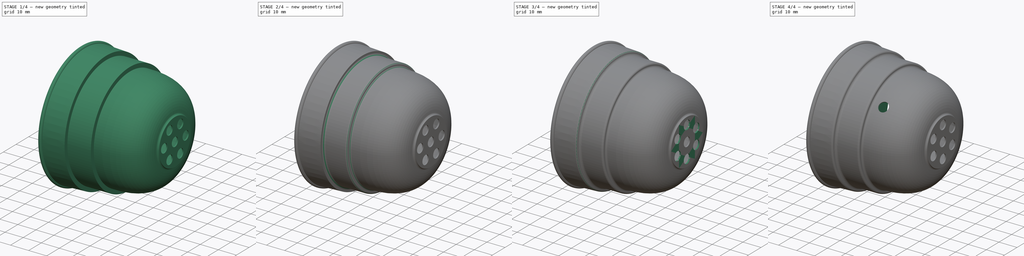
[diagram: build sequence overview — one tinted view per stage of 4, left to right]
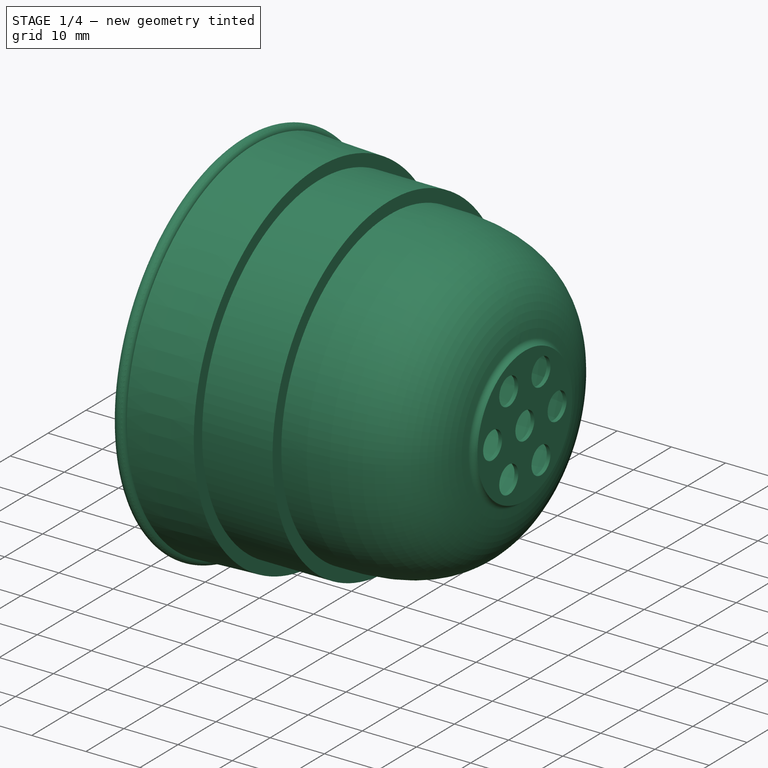
[diagram: stage 1 of 4 — iso view after this stage's code; geometry added in this stage tinted green]
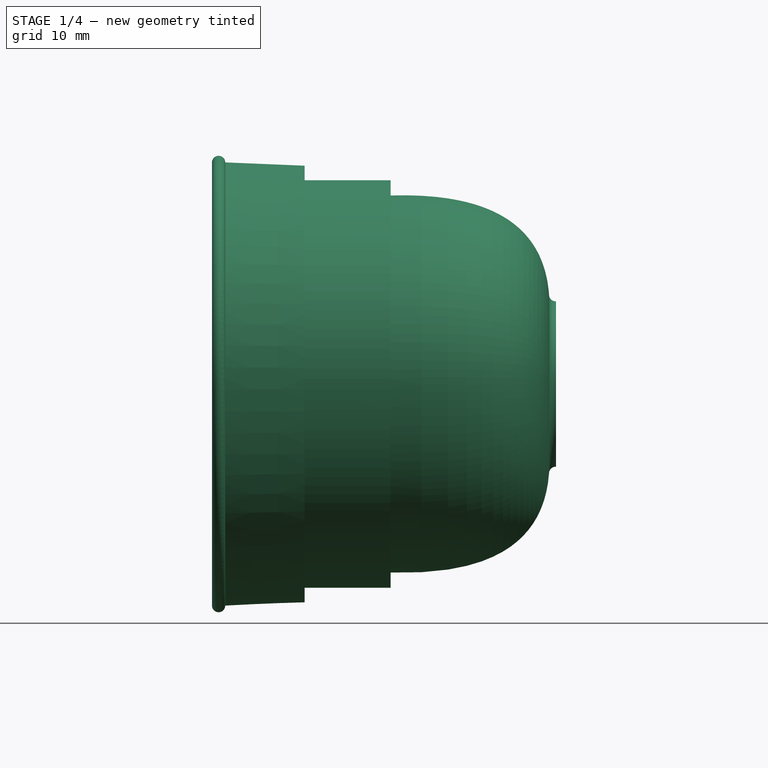
[diagram: stage 1 of 4 — front view after this stage's code; geometry added in this stage tinted green]
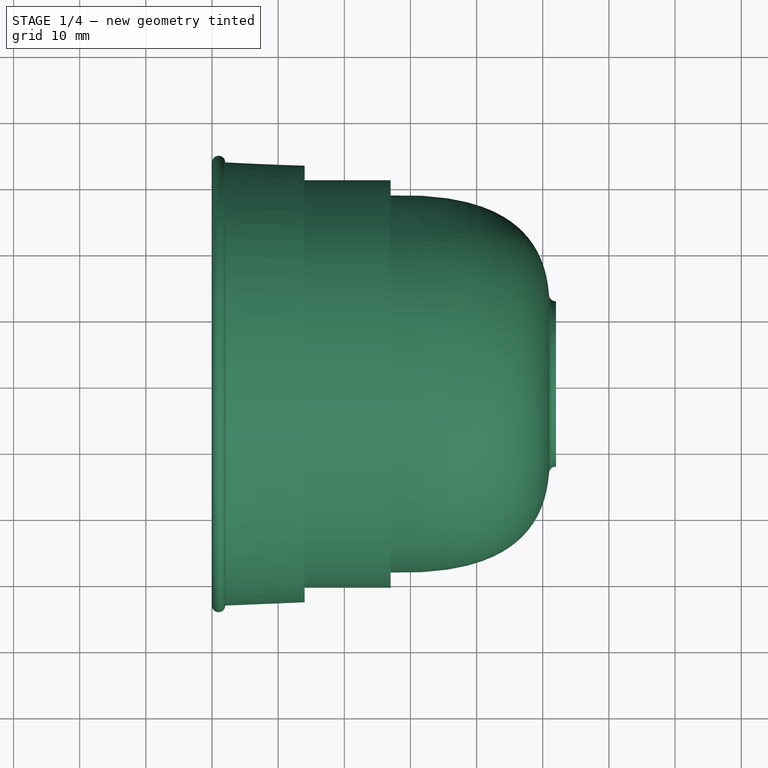
[diagram: stage 1 of 4 — top view after this stage's code; geometry added in this stage tinted green]
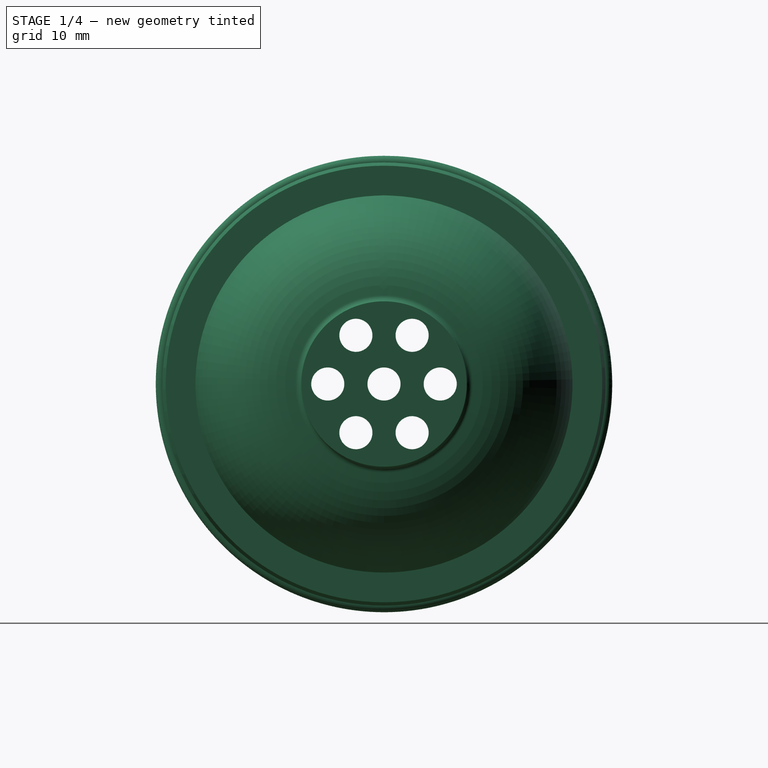
[diagram: stage 1 of 4 — right view after this stage's code; geometry added in this stage tinted green]
FCSTD DOCUMENT  (FreeCAD 0.19R19566 (Git))
Label: Cap
License: All rights reserved
LicenseURL: http://en.wikipedia.org/wiki/All_rights_reserved
objects: Part::Feature×34, App::Part×28, PartDesign::Fillet×6, Sketcher::SketchObject×4, PartDesign::Body×2, PartDesign::SubtractiveCylinder×2, PartDesign::Revolution×1, PartDesign::Plane×1, PartDesign::Pad×1, PartDesign::Hole×1, PartDesign::Pocket×1, PartDesign::Line×1
note: 60 computed .brp shape members not serialized (recipe doc carries the construction recipe); baked Part::Feature solids carry a one-line shape summary decoded from their .brp

FEATURE [Sketcher::SketchObject] Sketch
  MapMode = 5
  Placement = pos=(0,0,0) rot=(1,0,0;1.5708rad)
  Support = -> [XZ_Plane]
  sketch-geometry (33):
    g0: LineSegment StartX=2 StartY=33.5 StartZ=0 EndX=14 EndY=33 EndZ=0
    g1: LineSegment StartX=14 StartY=33 StartZ=0 EndX=14 EndY=30.8 EndZ=0
    g2: LineSegment StartX=14 StartY=30.8 StartZ=0 EndX=27 EndY=30.8 EndZ=0
    g3: LineSegment StartX=27 StartY=30.8 StartZ=0 EndX=27 EndY=28.5 EndZ=0
    g4: ArcOfCircle CenterX=1 CenterY=33.5 CenterZ=0 NormalX=0 NormalY=0 NormalZ=1 AngleXU=0 Radius=1 StartAngle=2.1e-15 EndAngle=3.14159
    g5: LineSegment [constr] StartX=2 StartY=33.5 StartZ=0 EndX=0 EndY=33.5 EndZ=0
    g6: LineSegment StartX=52 StartY=0 StartZ=0 EndX=52 EndY=12.5 EndZ=0
    g7: LineSegment StartX=52 StartY=12.5 StartZ=0 EndX=51 EndY=12.5 EndZ=0
    g8: Circle [constr] CenterX=27 CenterY=28.5 CenterZ=0 NormalX=0 NormalY=0 NormalZ=1 AngleXU=0 Radius=2
    g9: Circle [constr] CenterX=50.5 CenterY=29.2 CenterZ=0 NormalX=0 NormalY=0 NormalZ=1 AngleXU=0 Radius=2
    g10: Circle [constr] CenterX=51 CenterY=12.5 CenterZ=0 NormalX=0 NormalY=0 NormalZ=1 AngleXU=0 Radius=2
    g11: BSplineCurve PolesCount=3 KnotsCount=2 Degree=2 IsPeriodic=0
    g12: GeomPoint [constr] X=27 Y=28.5 Z=0
    g13: GeomPoint [constr] X=51 Y=12.5 Z=0
    g14: LineSegment StartX=0 StartY=33.5 StartZ=0 EndX=0 EndY=32.8 EndZ=0
    g15: LineSegment StartX=0 StartY=32.8 StartZ=0 EndX=13.3 EndY=32.3286 EndZ=0
    g16: LineSegment StartX=13.3 StartY=32.3286 StartZ=0 EndX=13.3 EndY=30.1 EndZ=0
    g17: LineSegment StartX=13.3 StartY=30.1 StartZ=0 EndX=26.3 EndY=30.1 EndZ=0
    g18: LineSegment StartX=26.3 StartY=30.1 StartZ=0 EndX=26.3 EndY=27.8 EndZ=0
    g19: LineSegment StartX=26.3 StartY=27.8 StartZ=0 EndX=27 EndY=27.8 EndZ=0
    g20: Circle [constr] CenterX=27 CenterY=27.8 CenterZ=0 NormalX=0 NormalY=0 NormalZ=1 AngleXU=0 Radius=3
    g21: Circle [constr] CenterX=50.05 CenterY=28.6638 CenterZ=0 NormalX=0 NormalY=0 NormalZ=1 AngleXU=0 Radius=3
    g22: Circle [constr] CenterX=50.3 CenterY=12.5 CenterZ=0 NormalX=0 NormalY=0 NormalZ=1 AngleXU=0 Radius=3
    g23: BSplineCurve PolesCount=3 KnotsCount=2 Degree=2 IsPeriodic=0
    g24: GeomPoint [constr] X=27 Y=27.8 Z=0
    g25: GeomPoint [constr] X=50.3 Y=12.5 Z=0
    g26: LineSegment StartX=52 StartY=0 StartZ=0 EndX=51.3 EndY=0 EndZ=0
    g27: LineSegment StartX=51.3 StartY=0 StartZ=0 EndX=51.3 EndY=12 EndZ=0
    g28: LineSegment StartX=51.3 StartY=12 StartZ=0 EndX=50.3 EndY=12.5 EndZ=0
    g29: LineSegment [constr] StartX=50.05 StartY=28.6638 StartZ=0 EndX=50.5 EndY=29.2 EndZ=0
    g30: LineSegment [constr] StartX=27 StartY=28.5 StartZ=0 EndX=27 EndY=27.8 EndZ=0
    g31: LineSegment [constr] StartX=13.3 StartY=32.3286 StartZ=0 EndX=13.3291 EndY=33.028 EndZ=0
    g32: LineSegment [constr] StartX=50.3 StartY=12.5 StartZ=0 EndX=51 EndY=12.5 EndZ=0
  constraints (85):
    c: Coincident(g0,g1)
    c: Vertical(g1)
    c: Coincident(g1,g2)
    c: Horizontal(g2)
    c: Coincident(g2,g3)
    c: Coincident(g4,g0)
    c: Coincident(g5,g0)
    c: Horizontal(g5)
    c: Coincident(g4,g5)
    c: DistanceX(g5,g5) = 2
    c: DistanceY(g-1,g4) = 33.5
    c: PointOnObject(g4,g-2)
    c: Vertical(g3)
    c: DistanceX(g4,g0) = 14
    c: DistanceY(g-1,g1) = 30.8
    c: DistanceX(g4,g2) = 27
    c: DistanceY(g-1,g0) = 33
    c: DistanceY(g-1,g3) = 28.5
    c: PointOnObject(g4,g5)
    c: PointOnObject(g6,g-1)
    c: Vertical(g6)
    c: Coincident(g6,g7)
    c: Horizontal(g7)
    c: DistanceX(g-1,g6) = 52
    c: DistanceY(g6,g6) = 12.5
    c: DistanceX(g7,g7) = 1
    c: Radius(g8) = 2
    c: Equal(g8,g9)
    c: Equal(g8,g10)
    c: Coincident(g11,g7)
    c: InternalAlignment(g8,g11)
    c: InternalAlignment(g9,g11)
    c: InternalAlignment(g10,g11)
    c: InternalAlignment(g12,g11)
    c: InternalAlignment(g13,g11)
    c: Coincident(g11,g3)
    c: Tangent(g4,g14) = -1.5708
    c: Coincident(g14,g15)
    c: Coincident(g15,g16)
    c: Vertical(g16)
    c: Coincident(g16,g17)
    c: Horizontal(g17)
    c: Coincident(g17,g18)
    c: Vertical(g18)
    c: Coincident(g18,g19)
    c: Coincident(g23,g19)
    c: Radius(g20) = 3
    c: Equal(g20,g21)
    c: Equal(g20,g22)
    c: InternalAlignment(g20,g23)
    c: InternalAlignment(g21,g23)
    c: InternalAlignment(g22,g23)
    c: InternalAlignment(g24,g23)
    c: InternalAlignment(g25,g23)
    c: Coincident(g6,g26)
    c: DistanceX(g26,g26) = 0.7
    c: Horizontal(g26)
    c: Coincident(g27,g26)
    c: Vertical(g27)
    c: Coincident(g27,g28)
    c: Coincident(g28,g23)
    c: DistanceY(g27,g6) = 0.5
    c: Coincident(g29,g21)
    c: Coincident(g29,g9)
    c: Angle(g29,g-1) = 2.26893
    c: Distance(g29) = 0.7
    c: Coincident(g3,g30)
    c: Coincident(g30,g19)
    c: Vertical(g30)
    c: DistanceY(g30,g30) = 0.7
    c: DistanceY(g17,g2) = 0.7
    c: DistanceX(g19,g19) = 0.7
    c: Horizontal(g19)
    c: DistanceX(g15,g0) = 0.7
    c: DistanceY(g14,g14) = 0.7
    c: Coincident(g15,g31)
    c: PointOnObject(g31,g0)
    c: Distance(g31) = 0.7
    c: Perpendicular(g0,g31)
    c: DistanceX(g9,g6) = 1.5
    c: DistanceY(g3,g9) = 0.7
    c: Horizontal(g32)
    c: Coincident(g32,g23)
    c: Coincident(g32,g7)
    c: DistanceX(g32,g32) = 0.7
FEATURE [PartDesign::Revolution] Revolution
  Angle = 360
  Axis = (1,0,0)
  Base = (0,0,0)
  Placement = pos=(0,0,0) rot=(1,0,0;1.5708rad)
  Profile = -> Sketch
  ReferenceAxis = -> X_Axis
  Reversed = true
FEATURE [PartDesign::Body] Body001  label="Blech"
  Group = -> [DatumPlane,Sketch001,Pad,Sketch002,Hole]
  Origin = -> Origin001
  Placement = pos=(25,0,0) rot=(0,0,1;0rad)
  Tip = -> Hole
FEATURE [Sketcher::SketchObject] Sketch003
  MapMode = 5
  Placement = pos=(52,0,0) rot=(0.707107,0,0.707107;3.14159rad)
  Support = -> [Revolution]
  sketch-geometry (14):
    g0: LineSegment [constr] StartX=7.36122 StartY=-4.25 StartZ=0 EndX=7.36122 EndY=4.25 EndZ=0
    g1: LineSegment [constr] StartX=7.36122 StartY=4.25 StartZ=0 EndX=0 EndY=8.5 EndZ=0
    g2: LineSegment [constr] StartX=0 StartY=8.5 StartZ=0 EndX=-7.36122 EndY=4.25 EndZ=0
    g3: LineSegment [constr] StartX=-7.36122 StartY=4.25 StartZ=0 EndX=-7.36122 EndY=-4.25 EndZ=0
    g4: LineSegment [constr] StartX=-7.36122 StartY=-4.25 StartZ=0 EndX=1.8e-15 EndY=-8.5 EndZ=0
    g5: LineSegment [constr] StartX=1.8e-15 StartY=-8.5 StartZ=0 EndX=7.36122 EndY=-4.25 EndZ=0
    g6: Circle [constr] CenterX=0 CenterY=0 CenterZ=0 NormalX=0 NormalY=0 NormalZ=1 AngleXU=0 Radius=8.5
    g7: Circle CenterX=7.36122 CenterY=4.25 CenterZ=0 NormalX=0 NormalY=0 NormalZ=1 AngleXU=0 Radius=2.5
    g8: Circle CenterX=7.36122 CenterY=-4.25 CenterZ=0 NormalX=0 NormalY=0 NormalZ=1 AngleXU=0 Radius=2.5
    g9: Circle CenterX=1.8e-15 CenterY=-8.5 CenterZ=0 NormalX=0 NormalY=0 NormalZ=1 AngleXU=0 Radius=2.5
    g10: Circle CenterX=-7.36122 CenterY=-4.25 CenterZ=0 NormalX=0 NormalY=0 NormalZ=1 AngleXU=0 Radius=2.5
    g11: Circle CenterX=-7.36122 CenterY=4.25 CenterZ=0 NormalX=0 NormalY=0 NormalZ=1 AngleXU=0 Radius=2.5
    g12: Circle CenterX=0 CenterY=8.5 CenterZ=0 NormalX=0 NormalY=0 NormalZ=1 AngleXU=0 Radius=2.5
    g13: Circle CenterX=0 CenterY=0 CenterZ=0 NormalX=0 NormalY=0 NormalZ=1 AngleXU=0 Radius=2.5
  constraints (30):
    c: Coincident(g0,g1)
    c: Coincident(g1,g2)
    c: Coincident(g2,g3)
    c: Coincident(g3,g4)
    c: Coincident(g4,g5)
    c: Coincident(g5,g0)
    c: Equal(g0, g1-g5) x5
    c: PointOnObject(g0,g6)
    c: PointOnObject(g1,g6)
    c: PointOnObject(g2,g6)
    c: PointOnObject(g3,g6)
    c: PointOnObject(g4,g6)
    c: PointOnObject(g5,g6)
    c: Coincident(g6,g-1)
    c: Distance(g2,g0) = 17
    c: PointOnObject(g1,g-2)
    c: Coincident(g7,g0)
    c: Coincident(g8,g0)
    c: Coincident(g9,g4)
    c: Coincident(g10,g3)
    c: Coincident(g11,g2)
    c: Coincident(g12,g1)
    c: Coincident(g13,g-1)
    c: Equal(g7,g8)
    c: Equal(g8,g9)
    c: Equal(g9,g13)
    c: Equal(g13,g12)
    c: Equal(g12,g11)
    c: Equal(g11,g10)
    c: Diameter(g7) = 5
FEATURE [PartDesign::Pocket] Pocket
  BaseFeature = -> Revolution
  Length = 5
  Length2 = 100
  Placement = pos=(0,0,0) rot=(1,0,0;1.5708rad)
  Profile = -> Sketch003
  Type = 0
FEATURE [PartDesign::Fillet] Fillet
  Base = -> Pocket [Edge16]
  BaseFeature = -> Pocket
  Placement = pos=(0,0,0) rot=(1,0,0;1.5708rad)
  Radius = 1
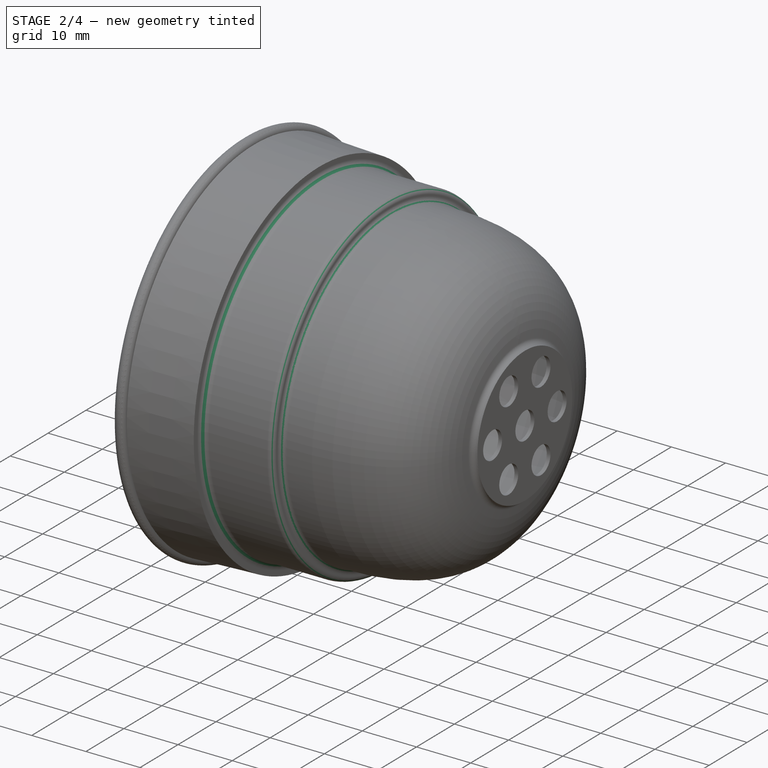
[diagram: stage 2 of 4 — iso view after this stage's code; geometry added in this stage tinted green]
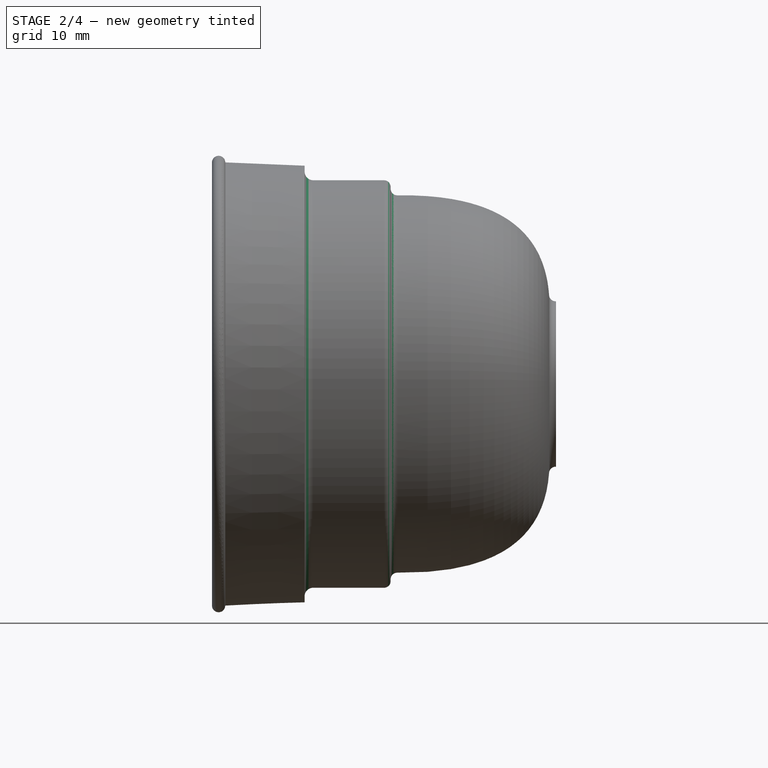
[diagram: stage 2 of 4 — front view after this stage's code; geometry added in this stage tinted green]
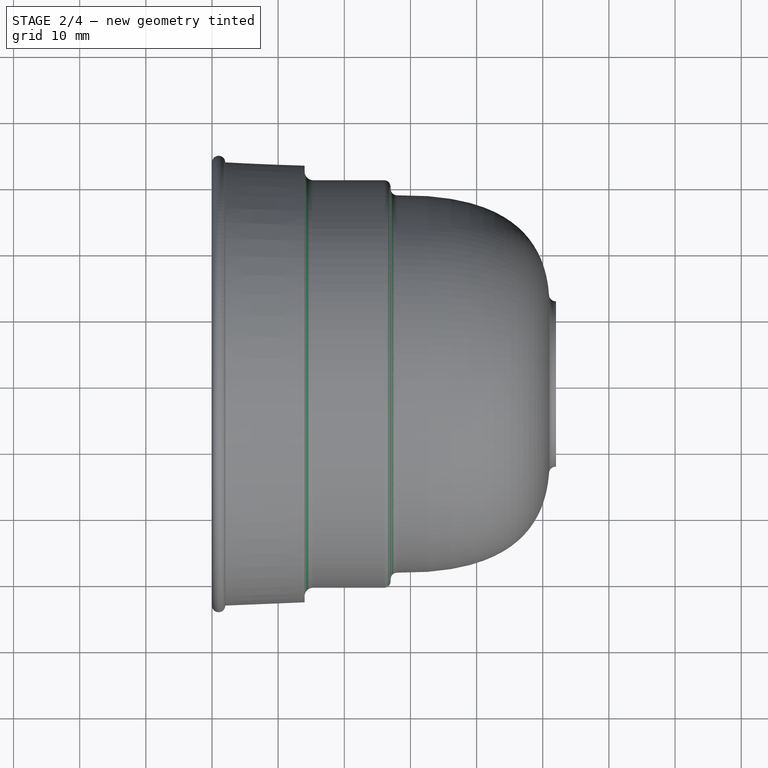
[diagram: stage 2 of 4 — top view after this stage's code; geometry added in this stage tinted green]
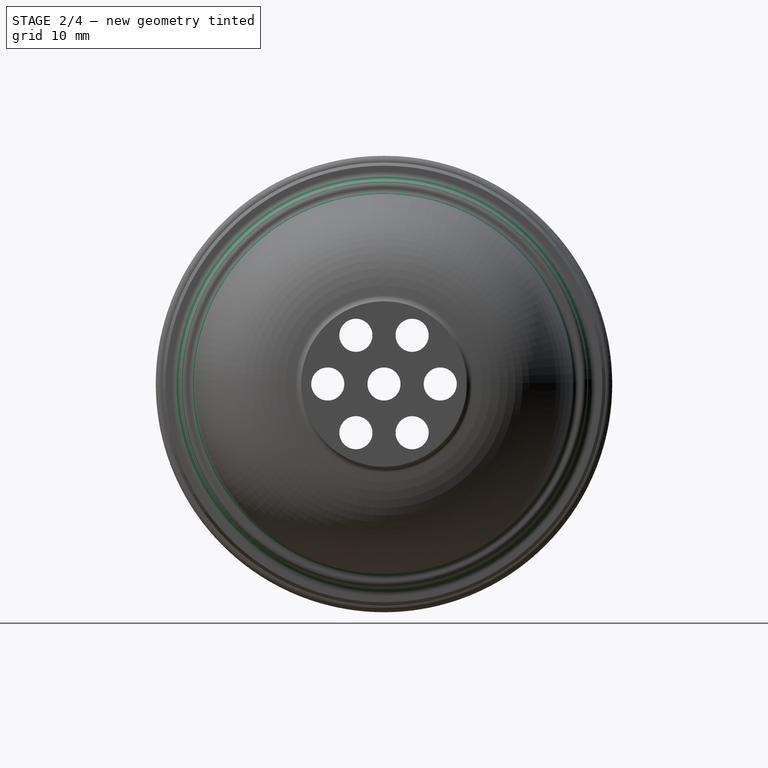
[diagram: stage 2 of 4 — right view after this stage's code; geometry added in this stage tinted green]
FEATURE [PartDesign::Fillet] Fillet001
  Base = -> Fillet [Edge3]
  BaseFeature = -> Fillet
  Placement = pos=(0,0,0) rot=(1,0,0;1.5708rad)
  Radius = 1
FEATURE [PartDesign::Fillet] Fillet002
  Base = -> Fillet001 [Edge8]
  BaseFeature = -> Fillet001
  Placement = pos=(0,0,0) rot=(1,0,0;1.5708rad)
  Radius = 1
FEATURE [PartDesign::Fillet] Fillet003
  Base = -> Fillet002 [Edge8]
  BaseFeature = -> Fillet002
  Placement = pos=(0,0,0) rot=(1,0,0;1.5708rad)
  Radius = 1.3
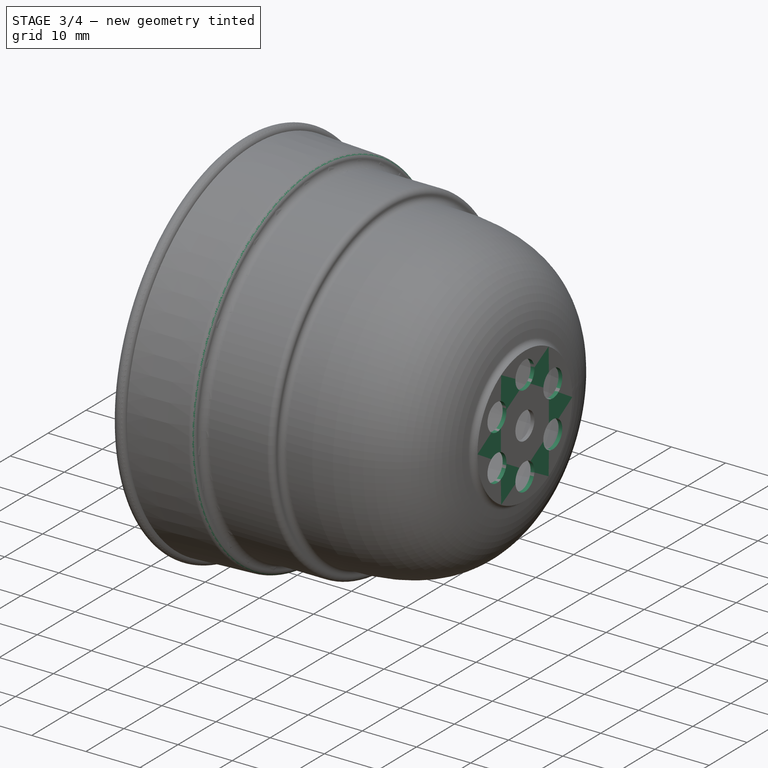
[diagram: stage 3 of 4 — iso view after this stage's code; geometry added in this stage tinted green]
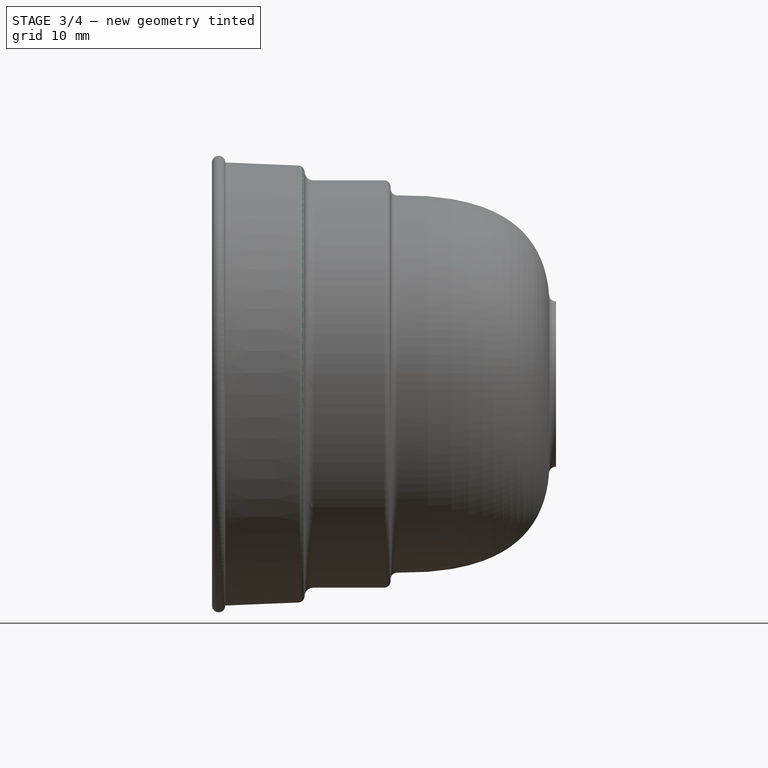
[diagram: stage 3 of 4 — front view after this stage's code; geometry added in this stage tinted green]
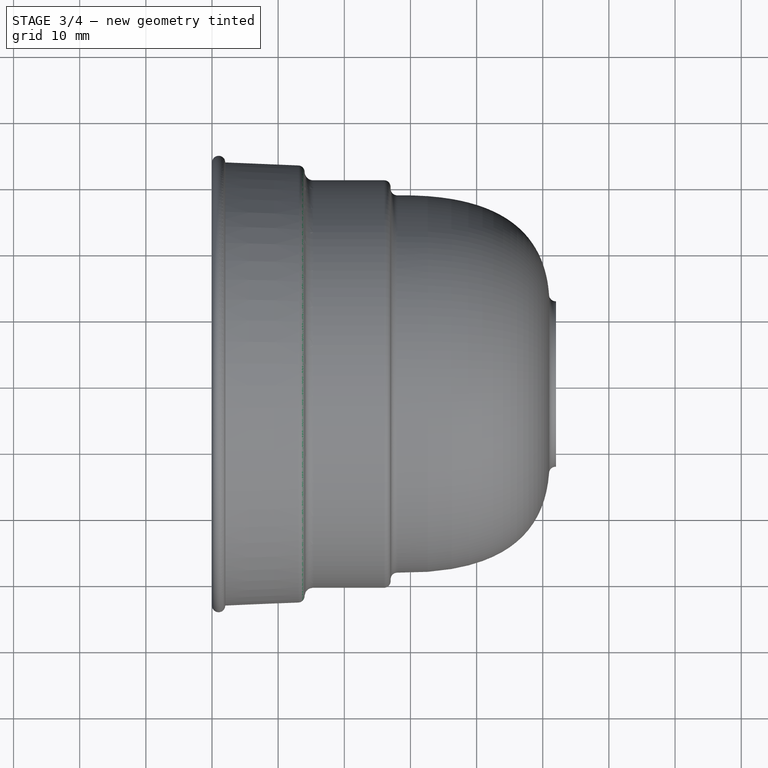
[diagram: stage 3 of 4 — top view after this stage's code; geometry added in this stage tinted green]
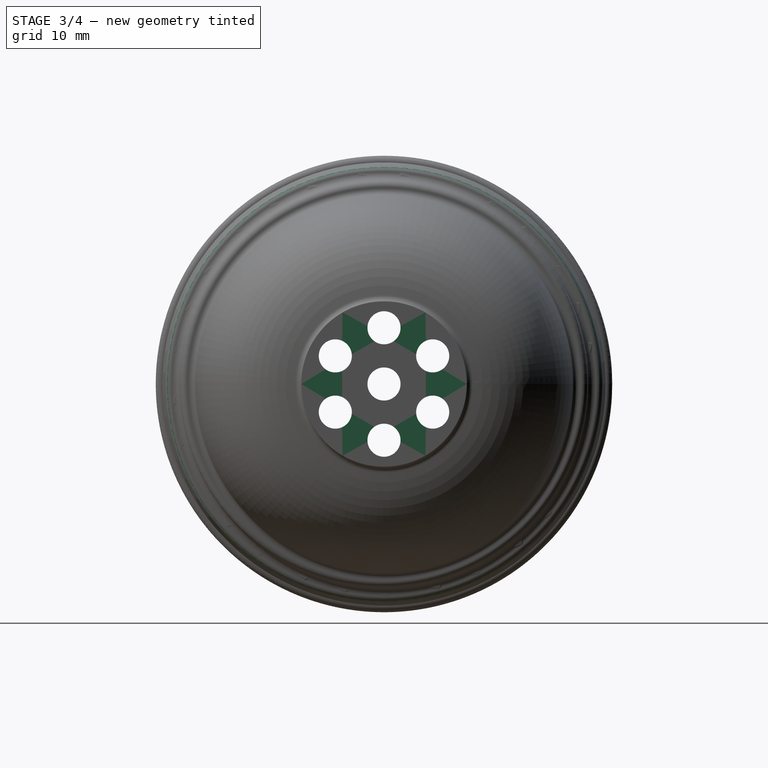
[diagram: stage 3 of 4 — right view after this stage's code; geometry added in this stage tinted green]
FEATURE [PartDesign::Fillet] Fillet004
  Base = -> Fillet003 [Edge8]
  BaseFeature = -> Fillet003
  Placement = pos=(0,0,0) rot=(1,0,0;1.5708rad)
  Radius = 1
FEATURE [PartDesign::Fillet] Fillet005
  Base = -> Fillet004 [Edge18,Edge22,Edge25]
  BaseFeature = -> Fillet004
  Placement = pos=(0,0,0) rot=(1,0,0;1.5708rad)
  Radius = 0.8
FEATURE [PartDesign::SubtractiveCylinder] Cylinder
  Angle = 360
  AttacherType = Attacher::AttachEngine3D
  BaseFeature = -> Fillet005
  Height = 10
  MapMode = 45
  Radius = 5
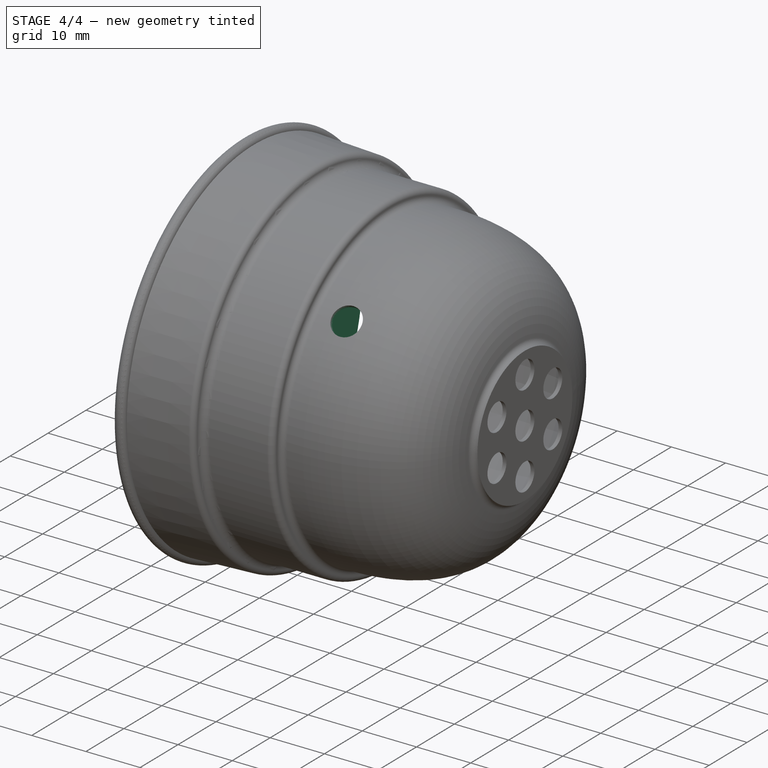
[diagram: stage 4 of 4 — iso view after this stage's code; geometry added in this stage tinted green]
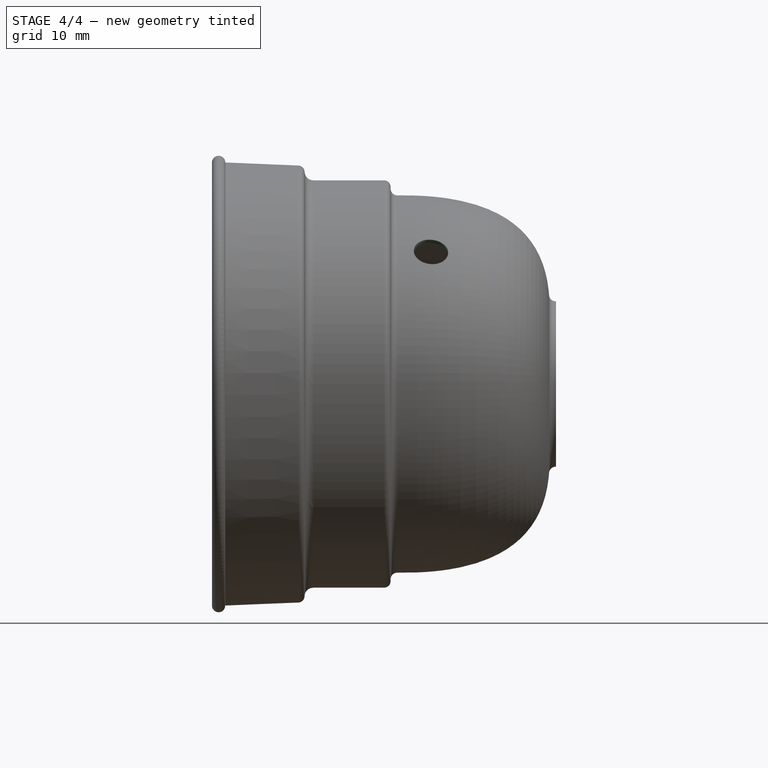
[diagram: stage 4 of 4 — front view after this stage's code; geometry added in this stage tinted green]
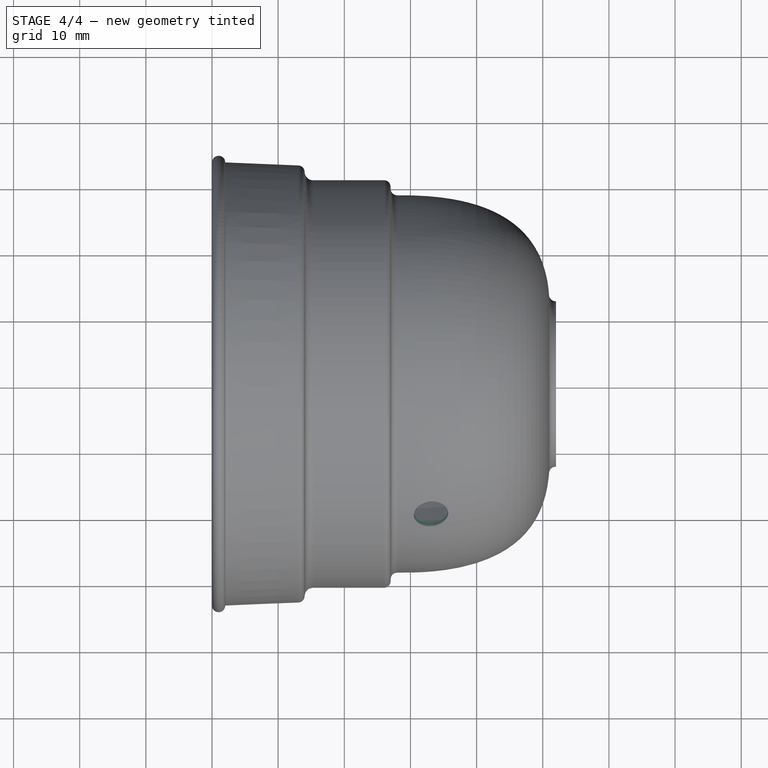
[diagram: stage 4 of 4 — top view after this stage's code; geometry added in this stage tinted green]
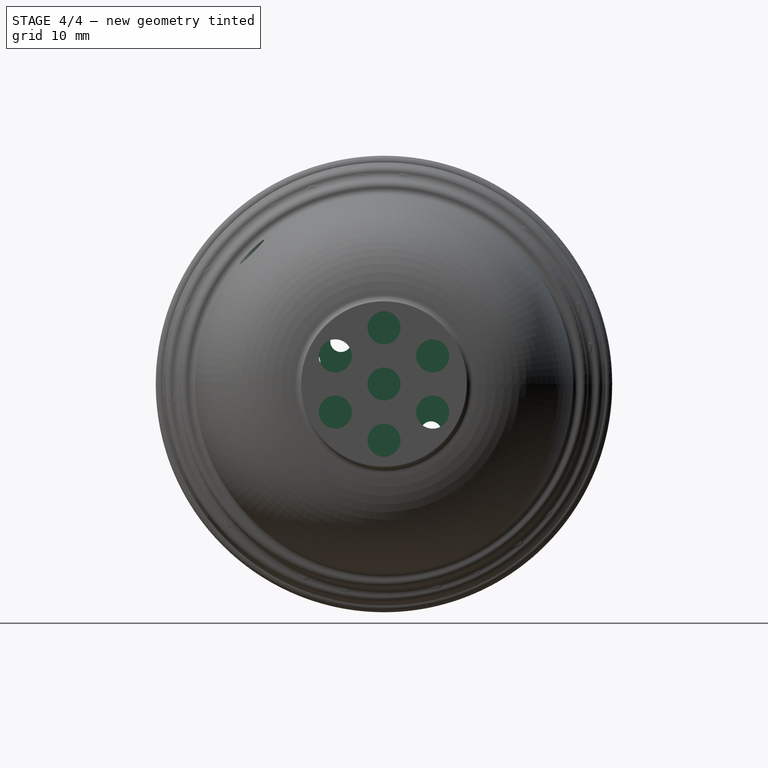
[diagram: stage 4 of 4 — right view after this stage's code; geometry added in this stage tinted green]
FEATURE [PartDesign::Plane] DatumPlane
  Length = 70.9545
  MapMode = 5
  Placement = pos=(0,0,0) rot=(0.57735,0.57735,0.57735;2.0944rad)
  ResizeMode = 0
  Support = -> [YZ_Plane001]
  Width = 60.9545
FEATURE [Sketcher::SketchObject] Sketch001
  MapMode = 5
  Placement = pos=(0,0,0) rot=(0.57735,0.57735,0.57735;2.0944rad)
  Support = -> [DatumPlane]
  sketch-geometry (4):
    g0: ArcOfCircle CenterX=0 CenterY=0 CenterZ=0 NormalX=0 NormalY=0 NormalZ=1 AngleXU=0 Radius=30 StartAngle=2.76617 EndAngle=3.51702
    g1: ArcOfCircle CenterX=0 CenterY=0 CenterZ=0 NormalX=0 NormalY=0 NormalZ=1 AngleXU=0 Radius=30 StartAngle=5.90776 EndAngle=6.65861
    g2: LineSegment StartX=-27.9106 StartY=11 StartZ=0 EndX=27.9106 EndY=11 EndZ=0
    g3: LineSegment StartX=-27.9106 StartY=-11 StartZ=0 EndX=27.9106 EndY=-11 EndZ=0
  constraints (11):
    c: Horizontal(g2)
    c: Horizontal(g3)
    c: Coincident(g0,g2)
    c: Coincident(g0,g3)
    c: Coincident(g0,g-1)
    c: Coincident(g2,g1)
    c: Coincident(g1,g3)
    c: Coincident(g1,g0)
    c: DistanceY(g0,g0) = 22
    c: Symmetric(g0,g1,g0)
    c: Diameter(g0) = 60
FEATURE [PartDesign::Pad] Pad
  Length = 1
  Length2 = 100
  Placement = pos=(0,0,0) rot=(0.57735,0.57735,0.57735;2.0944rad)
  Profile = -> Sketch001
  Type = 0
FEATURE [Part::Feature] Part__Feature  label="SOLID"
  shape: bbox 6.1 x 14 x 6.206 mm, 164 faces (baked)
FEATURE [Part::Feature] Part__Feature001  label="SOLID001"
  shape: bbox 6.807 x 2.8 x 8.016 mm, 86 faces (baked)
FEATURE [Part::Feature] Part__Feature002  label="SOLID002"
  shape: bbox 6.403 x 2.8 x 8.016 mm, 68 faces (baked)
FEATURE [Part::Feature] Part__Feature003  label="SOLID003"
  shape: bbox 6.807 x 2.8 x 8.016 mm, 86 faces (baked)
FEATURE [App::Part] TRS_Jack
  Group = -> [Part__Feature,Part__Feature001,Part__Feature002,Part__Feature003]
  Origin = -> Origin002
  Placement = pos=(14.5574,-15.0574,7.25) rot=(0,0,1;0.785398rad)
FEATURE [Part::Feature] Part__Feature004  label="SOLID004"
  shape: bbox 6.1 x 14 x 6.206 mm, 164 faces (baked)
FEATURE [Part::Feature] Part__Feature005  label="SOLID005"
  shape: bbox 6.807 x 2.8 x 8.016 mm, 86 faces (baked)
FEATURE [Part::Feature] Part__Feature006  label="SOLID006"
  shape: bbox 6.403 x 2.8 x 8.016 mm, 68 faces (baked)
FEATURE [Part::Feature] Part__Feature007  label="SOLID007"
  shape: bbox 6.807 x 2.8 x 8.016 mm, 86 faces (baked)
FEATURE [App::Part] TRS_Jack001
  Group = -> [Part__Feature004,Part__Feature005,Part__Feature006,Part__Feature007]
  Origin = -> Origin003
  Placement = pos=(-14.5574,-15.1574,7.25) rot=(0,0,-1;0.785398rad)
FEATURE [Part::Feature] Part__Feature008  label="SOLID008"
  shape: bbox 1.6 x 0.8 x 0.45 mm, 26 faces (baked)
FEATURE [App::Part] R_0603_1608Metric
  Group = -> [Part__Feature008]
  Origin = -> Origin004
  Placement = pos=(0,-9.275,1.65) rot=(0,0,1;1.5708rad)
FEATURE [Part::Feature] Part__Feature009  label="SOLID009"
  shape: bbox 2.54 x 5.08 x 11.54 mm, 52 faces (baked)
FEATURE [App::Part] PinHeader_1x02_P2_54mm_Vertical  label="PinHeader_1x02_P2.54mm_Vertical"
  Group = -> [Part__Feature009]
  Origin = -> Origin005
  Placement = pos=(15.5,16.8,-0.05) rot=(0.707107,0.707107,0;3.14159rad)
FEATURE [Part::Feature] Part__Feature010  label="SOLID010"
  shape: bbox 2.54 x 10.16 x 11.54 mm, 100 faces (baked)
FEATURE [App::Part] PinHeader_1x04_P2_54mm_Vertical  label="PinHeader_1x04_P2.54mm_Vertical"
  Group = -> [Part__Feature010]
  Origin = -> Origin006
  Placement = pos=(-22.2,1.26,1.65) rot=(0,0,1;0rad)
FEATURE [Part::Feature] Part__Feature011  label="SOLID011"
  shape: bbox 2.54 x 5.08 x 11.54 mm, 52 faces (baked)
FEATURE [App::Part] PinHeader_1x02_P2_54mm_Vertical001  label="PinHeader_1x02_P2.54mm_Vertical001"
  Group = -> [Part__Feature011]
  Origin = -> Origin007
  Placement = pos=(22.2,3.8,1.65) rot=(0,0,1;0rad)
FEATURE [Part::Feature] Part__Feature012  label="SOLID012"
  shape: bbox 2.54 x 5.08 x 11.54 mm, 52 faces (baked)
FEATURE [App::Part] PinHeader_1x02_P2_54mm_Vertical002  label="PinHeader_1x02_P2.54mm_Vertical002"
  Group = -> [Part__Feature012]
  Origin = -> Origin008
  Placement = pos=(-15,14,-0.05) rot=(1,0,0;3.14159rad)
FEATURE [Part::Feature] Part__Feature013  label="SOLID013"
  shape: bbox 7 x 6.5 x 1.7 mm, 78 faces (baked)
FEATURE [App::Part] SOT_223  label="SOT-223"
  Group = -> [Part__Feature013]
  Origin = -> Origin009
  Placement = pos=(-7.8,18,1.65) rot=(0,0,1;0rad)
FEATURE [Part::Feature] Part__Feature014  label="SOLID014"
  shape: bbox 2 x 1.25 x 1.25 mm, 28 faces (baked)
FEATURE [App::Part] C_0805_2012Metric
  Group = -> [Part__Feature014]
  Origin = -> Origin010
  Placement = pos=(-8.9,-9.675,1.65) rot=(0,0,-1;1.5708rad)
FEATURE [Part::Feature] Part__Feature015  label="SOLID015"
  shape: bbox 2 x 1.25 x 1.25 mm, 28 faces (baked)
FEATURE [App::Part] C_0805_2012Metric001
  Group = -> [Part__Feature015]
  Origin = -> Origin011
  Placement = pos=(21.9,-4.875,1.65) rot=(0,0,1;1.5708rad)
FEATURE [Part::Feature] Part__Feature016  label="SOLID016"
  shape: bbox 6 x 4.9 x 1.75 mm, 156 faces (baked)
FEATURE [App::Part] SOIC_8_3_9x4_9mm_P1_27mm  label="SOIC-8_3.9x4.9mm_P1.27mm"
  Group = -> [Part__Feature016]
  Origin = -> Origin012
  Placement = pos=(17.8,-4.4,1.65) rot=(0,0,-1;1.5708rad)
FEATURE [Part::Feature] Part__Feature017  label="SOLID017"
  shape: bbox 18 x 25.5 x 3.1 mm, 751 faces (baked)
FEATURE [App::Part] ESP32_WROOM_32  label="ESP32-WROOM-32"
  Group = -> [Part__Feature017]
  Origin = -> Origin013
  Placement = pos=(-3.2,2.7,1.65) rot=(0,0,1;1.5708rad)
FEATURE [Part::Feature] Part__Feature018  label="SOLID018"
  shape: bbox 1.6 x 0.8 x 0.45 mm, 26 faces (baked)
FEATURE [App::Part] R_0603_1608Metric001
  Group = -> [Part__Feature018]
  Origin = -> Origin014
  Placement = pos=(-7.2,-18.125,1.65) rot=(0,0,1;1.5708rad)
FEATURE [Part::Feature] Part__Feature019  label="SOLID019"
  shape: bbox 1.6 x 0.8 x 0.45 mm, 26 faces (baked)
FEATURE [App::Part] R_0603_1608Metric002
  Group = -> [Part__Feature019]
  Origin = -> Origin015
  Placement = pos=(0,-13.825,1.65) rot=(0,0,-1;1.5708rad)
FEATURE [Part::Feature] Part__Feature020  label="SOLID020"
  shape: bbox 2 x 1.2 x 0.45 mm, 26 faces (baked)
FEATURE [App::Part] R_0805_2012Metric
  Group = -> [Part__Feature020]
  Origin = -> Origin016
  Placement = pos=(6.2,-17.875,1.65) rot=(0,0,-1;1.5708rad)
FEATURE [Part::Feature] Part__Feature021  label="SOLID021"
  shape: bbox 1.6 x 0.8 x 0.45 mm, 26 faces (baked)
FEATURE [App::Part] R_0603_1608Metric003
  Group = -> [Part__Feature021]
  Origin = -> Origin017
  Placement = pos=(13.8,-1.8,1.65) rot=(0,0,1;1.5708rad)
FEATURE [Part::Feature] Part__Feature022  label="SOLID022"
  shape: bbox 1.6 x 0.8 x 0.45 mm, 26 faces (baked)
FEATURE [App::Part] R_0603_1608Metric004
  Group = -> [Part__Feature022]
  Origin = -> Origin018
  Placement = pos=(11,-6.3,1.65) rot=(0,0,1;3.14159rad)
FEATURE [Part::Feature] Part__Feature023  label="SOLID023"
  shape: bbox 1.6 x 0.8 x 0.45 mm, 26 faces (baked)
FEATURE [App::Part] R_0603_1608Metric005
  Group = -> [Part__Feature023]
  Origin = -> Origin019
  Placement = pos=(16.6,1.6,1.65) rot=(0,0,1;3.14159rad)
FEATURE [Part::Feature] Part__Feature024  label="SOLID024"
  shape: bbox 1.6 x 0.8 x 0.45 mm, 26 faces (baked)
FEATURE [App::Part] R_0603_1608Metric006
  Group = -> [Part__Feature024]
  Origin = -> Origin020
  Placement = pos=(10.975,-7.9,1.65) rot=(0,0,1;3.14159rad)
FEATURE [Part::Feature] Part__Feature025  label="SOLID025"
  shape: bbox 1.6 x 0.8 x 0.45 mm, 26 faces (baked)
FEATURE [App::Part] R_0603_1608Metric007
  Group = -> [Part__Feature025]
  Origin = -> Origin021
  Placement = pos=(16.6,3.2,1.65) rot=(0,0,1;0rad)
FEATURE [Part::Feature] Part__Feature026  label="SOLID026"
  shape: bbox 1.6 x 0.8 x 0.45 mm, 26 faces (baked)
FEATURE [App::Part] R_0603_1608Metric008
  Group = -> [Part__Feature026]
  Origin = -> Origin022
  Placement = pos=(11.3,-4.4,1.65) rot=(0,0,1;3.14159rad)
FEATURE [Part::Feature] Part__Feature027  label="SOLID027"
  shape: bbox 1.6 x 0.8 x 0.45 mm, 26 faces (baked)
FEATURE [App::Part] R_0603_1608Metric009
  Group = -> [Part__Feature027]
  Origin = -> Origin023
  Placement = pos=(9.8,5,1.65) rot=(0,0,1;0rad)
FEATURE [Part::Feature] Part__Feature028  label="SOLID028"
  shape: bbox 1.6 x 0.8 x 0.45 mm, 26 faces (baked)
FEATURE [App::Part] R_0603_1608Metric010
  Group = -> [Part__Feature028]
  Origin = -> Origin024
  Placement = pos=(9.775,10.4,1.65) rot=(0,0,1;3.14159rad)
FEATURE [Part::Feature] Part__Feature029  label="SOLID029"
  shape: bbox 1.6 x 0.8 x 0.45 mm, 26 faces (baked)
FEATURE [App::Part] R_0603_1608Metric011
  Group = -> [Part__Feature029]
  Origin = -> Origin025
  Placement = pos=(10.7,3.2,1.65) rot=(0,0,1;0rad)
FEATURE [Part::Feature] Part__Feature030  label="SOLID030"
  shape: bbox 1.6 x 0.8 x 0.45 mm, 26 faces (baked)
FEATURE [App::Part] R_0603_1608Metric012
  Group = -> [Part__Feature030]
  Origin = -> Origin026
  Placement = pos=(9.8,1.5,1.65) rot=(0,0,1;3.14159rad)
FEATURE [Part::Feature] Part__Feature031  label="SOLID031"
  shape: bbox 2.5 x 3 x 1.2 mm, 76 faces (baked)
FEATURE [App::Part] SOT_23  label="SOT-23"
  Group = -> [Part__Feature031]
  Origin = -> Origin027
  Placement = pos=(9.9,7.7,1.65) rot=(0,0,1;0rad)
FEATURE [Part::Feature] Part__Feature032  label="SOLID032"
  shape: bbox 2.5 x 3 x 1.2 mm, 76 faces (baked)
FEATURE [App::Part] SOT_23001  label="SOT-224"
  Group = -> [Part__Feature032]
  Origin = -> Origin028
  Placement = pos=(9.9,-1.3,1.65) rot=(0,0,1;0rad)
FEATURE [Part::Feature] Part__Feature033  label="COMPOUND"
  shape: bbox 48.2 x 44.67 x 1.6 mm, 80 faces (baked)
FEATURE [App::Part] Open_CASCADE_STEP_translator_6_9_1  label="Open CASCADE STEP translator 6.9 1"
  Group = -> [TRS_Jack,TRS_Jack001,R_0603_1608Metric,PinHeader_1x02_P2_54mm_Vertical,PinHeader_1x04_P2_54mm_Vertical,PinHeader_1x02_P2_54mm_Vertical001,PinHeader_1x02_P2_54mm_Vertical002,SOT_223,C_0805_2012Metric,C_0805_2012Metric001,SOIC_8_3_9x4_9mm_P1_27mm,ESP32_WROOM_32,R_0603_1608Metric001,R_0603_1608Metric002,R_0805_2012Metric,R_0603_1608Metric003,R_0603_1608Metric004,R_0603_1608Metric005,+10 more]
  Origin = -> Origin029
  Placement = pos=(29,0,0) rot=(0,1,0;1.5708rad)
FEATURE [Sketcher::SketchObject] Sketch002
  MapMode = 5
  Placement = pos=(0,0,0) rot=(0.57735,0.57735,-0.57735;4.18879rad)
  Support = -> [Pad]
  sketch-geometry (10):
    g0: Circle CenterX=16.25 CenterY=0 CenterZ=0 NormalX=0 NormalY=0 NormalZ=1 AngleXU=0 Radius=1.75
    g1: Circle CenterX=-16.25 CenterY=9e-16 CenterZ=0 NormalX=0 NormalY=0 NormalZ=1 AngleXU=0 Radius=1.75
    g2: Circle CenterX=-11.2356 CenterY=-3.31595 CenterZ=0 NormalX=0 NormalY=0 NormalZ=1 AngleXU=0 Radius=1.75
    g3: Circle CenterX=11.5402 CenterY=3.73599 CenterZ=0 NormalX=0 NormalY=0 NormalZ=1 AngleXU=0 Radius=1.75
    g4: Circle CenterX=-6.51593 CenterY=-6.43697 CenterZ=0 NormalX=0 NormalY=0 NormalZ=1 AngleXU=0 Radius=1.75
    g5: Circle CenterX=7.10724 CenterY=7.25235 CenterZ=0 NormalX=0 NormalY=0 NormalZ=1 AngleXU=0 Radius=1.75
    g6: LineSegment [constr] StartX=16.25 StartY=0 StartZ=0 EndX=11.5402 EndY=3.73599 EndZ=0
    g7: LineSegment [constr] StartX=-6.51593 StartY=-6.43697 StartZ=0 EndX=-11.2356 EndY=-3.31595 EndZ=0
    g8: LineSegment [constr] StartX=11.5402 StartY=3.73599 StartZ=0 EndX=7.10724 EndY=7.25235 EndZ=0
    g9: LineSegment [constr] StartX=-11.2356 StartY=-3.31595 StartZ=0 EndX=-16.25 EndY=9e-16 EndZ=0
  constraints (21):
    c: PointOnObject(g0,g-1)
    c: Diameter(g0) = 3.5
    c: Equal(g0,g1)
    c: DistanceX(g1,g0) = 32.5
    c: Symmetric(g0,g1,g-1)
    c: Coincident(g9,g1)
    c: Coincident(g9,g2)
    c: Coincident(g7,g2)
    c: Coincident(g7,g4)
    c: Coincident(g8,g5)
    c: Coincident(g8,g3)
    c: Coincident(g6,g3)
    c: Coincident(g6,g0)
    c: Equal(g6,g9)
    c: Equal(g8,g7)
    c: Parallel(g7,g9)
    c: Parallel(g8,g6)
    c: Equal(g2,g1)
    c: Equal(g4,g2)
    c: Equal(g0,g3)
    c: Equal(g5,g3)
FEATURE [PartDesign::Hole] Hole
  BaseFeature = -> Pad
  Depth = 25
  DepthType = 0
  Diameter = 3.2
  DrillPoint = 1
  DrillPointAngle = 118
  HoleCutCountersinkAngle = 90
  HoleCutDepth = 0
  HoleCutDiameter = 0
  HoleCutType = 0
  ModelActualThread = false
  Placement = pos=(0,0,0) rot=(0.57735,0.57735,0.57735;2.0944rad)
  Profile = -> Sketch002
  Tapered = false
  TaperedAngle = 90
  ThreadAngle = 0
  ThreadClass = 0
  ThreadCutOffInner = 0
  ThreadCutOffOuter = 0
  ThreadDirection = 0
  ThreadFit = 0
  ThreadPitch = 0
  ThreadSize = 0
  ThreadType = 0
  Threaded = false
FEATURE [PartDesign::Line] DatumLine
  AttacherType = Attacher::AttachEngineLine
  AttachmentOffset = pos=(33.1,0,0) rot=(-1,0,0;0.785398rad)
  MapMode = 17
  Placement = pos=(33.1,0,0) rot=(1,0,0;0.785398rad)
  Support = -> [XY_Plane]
FEATURE [PartDesign::SubtractiveCylinder] Cylinder001
  Angle = 360
  AttacherType = Attacher::AttachEngine3D
  BaseFeature = -> Cylinder
  Height = 40
  MapMode = 2
  Placement = pos=(33.1,0,0) rot=(1,0,0;0.785398rad)
  Radius = 2.6
  Support = -> [DatumLine]
FEATURE [PartDesign::Body] Body  label="Cap"
  Group = -> [Sketch,Revolution,Sketch003,Pocket,Fillet,Fillet001,Fillet002,Fillet003,Fillet004,Fillet005,Cylinder,DatumLine,Cylinder001]
  Origin = -> Origin
  Tip = -> Cylinder001
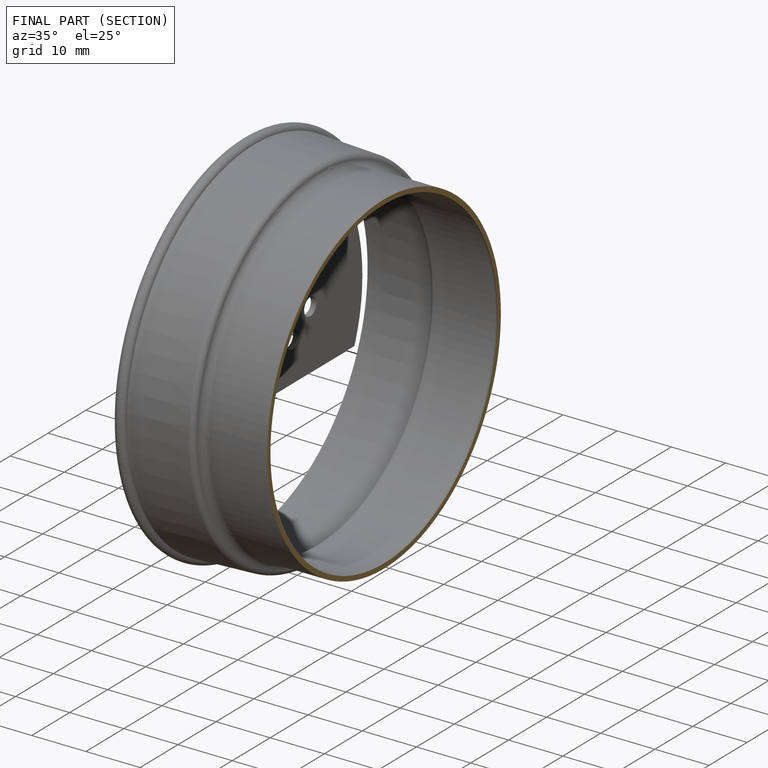
[diagram: finished part — half-section view (interior)]
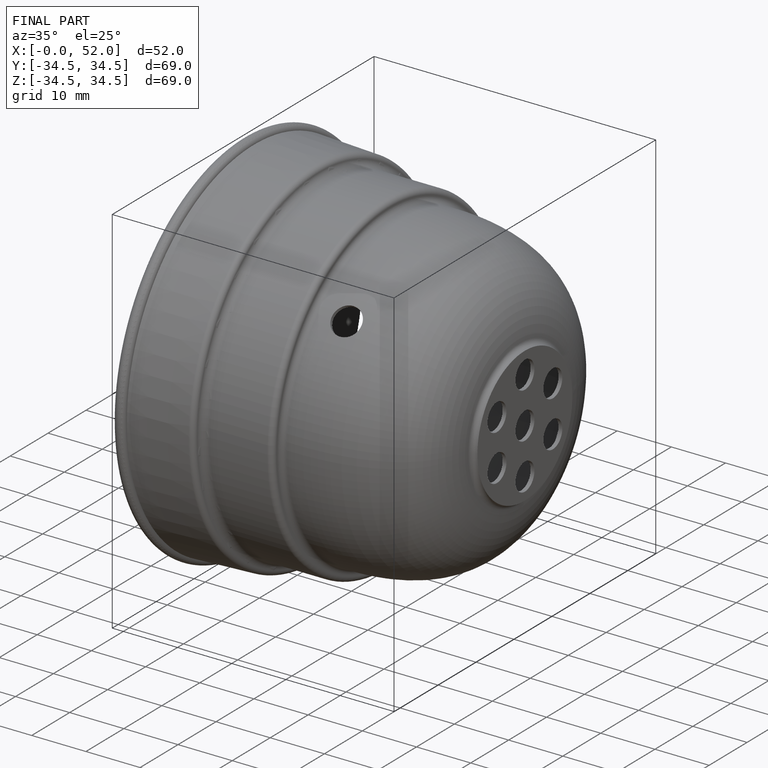
[diagram: finished part — iso view with bounding-box wireframe]
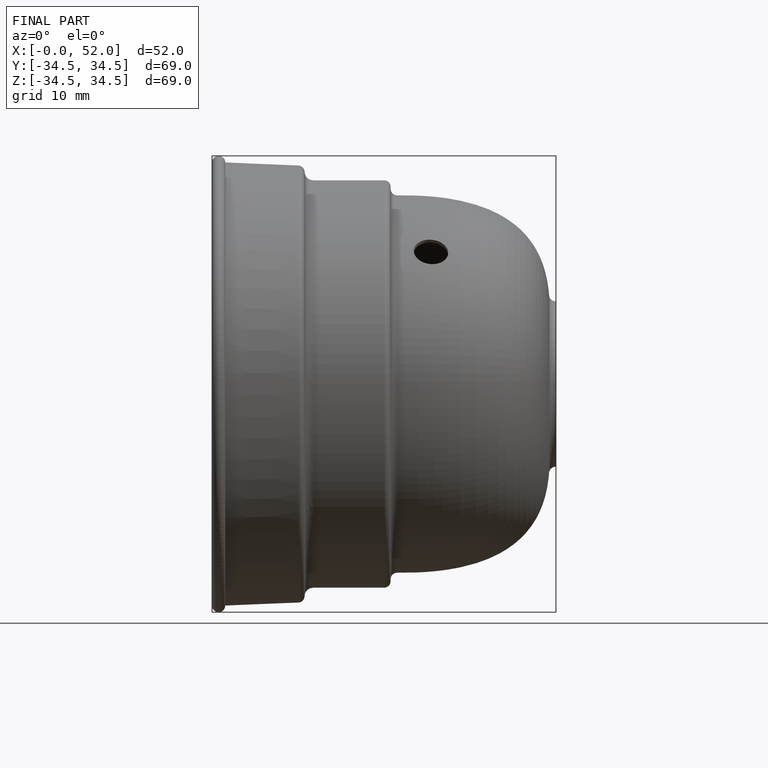
[diagram: finished part — front view with bounding-box wireframe]
